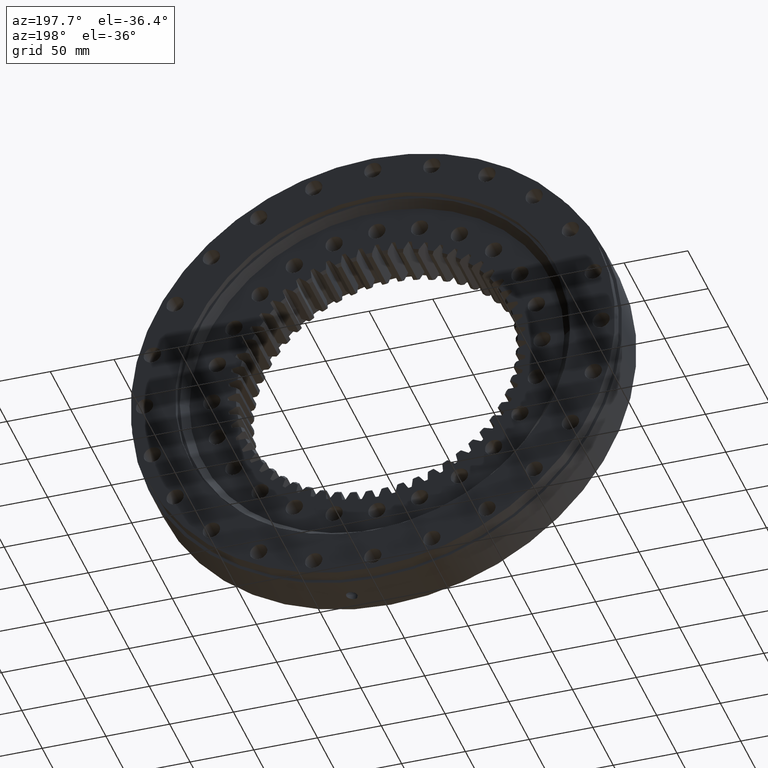
[diagram: clean part render]
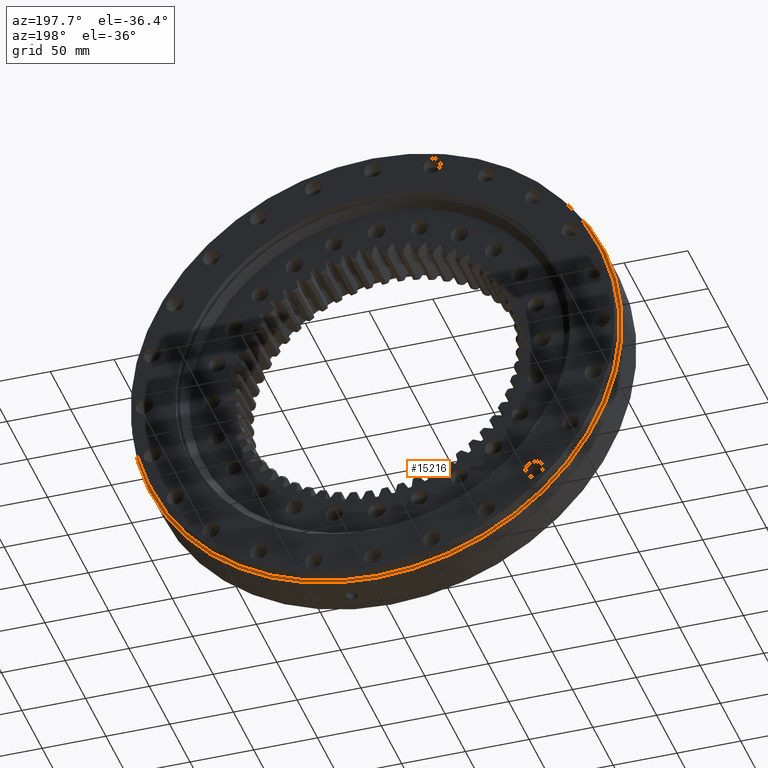
[diagram: same view with one face highlighted and labeled with its STEP entity id]
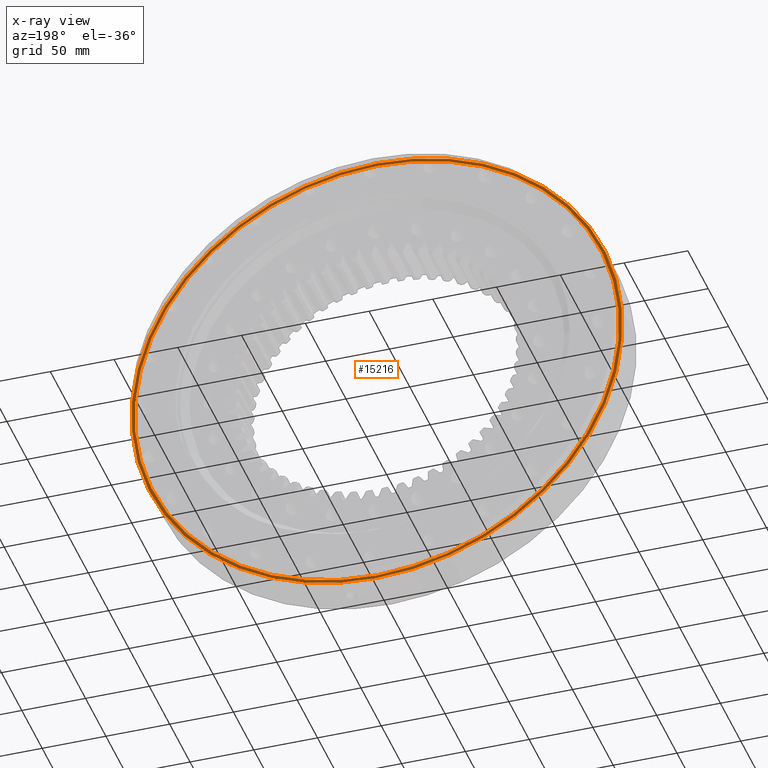
[diagram: x-ray of the same camera — body ghosted, the highlighted face saturated]
A machine part, auxiliary view. The second image highlights one B-rep face of the part: STEP entity #15216.
The next image is the same camera in x-ray: the body ghosted, the highlighted face saturated — about 0% of this face is hidden behind the body in this view.
In plain terms, the highlighted planar face has unit normal (-0, 1, 0).
Its self-contained STEP definition (entity closure, byte-faithful):
#297 = DIRECTION ( 'NONE',  ( -1.173697223544192200E-016, 1.000000000000000000, 8.822830751849694200E-017 ) ) ;
#1467 = EDGE_CURVE ( 'NONE', #11349, #14979, #4953, .T. ) ;
#1870 = EDGE_LOOP ( 'NONE', ( #15402, #10130 ) ) ;
#2967 = CARTESIAN_POINT ( 'NONE',  ( -2.053970141202340900E-015, 17.50000000000003600, 6.114880371925134200E-016 ) ) ;
#3278 = FACE_OUTER_BOUND ( 'NONE', #15466, .T. ) ;
#3811 = EDGE_CURVE ( 'NONE', #14611, #7790, #16145, .T. ) ;
#4822 = CARTESIAN_POINT ( 'NONE',  ( -2.053970141202340100E-015, 17.50000000000002800, -1.712296665085923400E-015 ) ) ;
#4941 = DIRECTION ( 'NONE',  ( -5.551115123125783900E-017, 8.822830751849692900E-017, -1.000000000000000000 ) ) ;
#4953 = CIRCLE ( 'NONE', #5582, 192.5000000000000000 ) ;
#5582 = AXIS2_PLACEMENT_3D ( 'NONE', #2967, #7716, #5866 ) ;
#5618 = PLANE ( 'NONE',  #5872 ) ;
#5688 = DIRECTION ( 'NONE',  ( -1.173697223544192200E-016, 1.000000000000000000, 8.822830751849692900E-017 ) ) ;
#5700 = CARTESIAN_POINT ( 'NONE',  ( 9.603371617361804800E-015, 17.50000000000001400, 210.0000000000000000 ) ) ;
#5760 = DIRECTION ( 'NONE',  ( 1.173697223544192200E-016, -1.000000000000000000, -8.822830751849692900E-017 ) ) ;
#5866 = DIRECTION ( 'NONE',  ( -5.551115123125783900E-017, 9.011550524554842000E-017, -1.000000000000000000 ) ) ;
#5872 = AXIS2_PLACEMENT_3D ( 'NONE', #5700, #297, #4941 ) ;
#6059 = CARTESIAN_POINT ( 'NONE',  ( -3.645622667071313900E-014, 17.50000000000004600, -190.0000000000000000 ) ) ;
#6458 = CARTESIAN_POINT ( 'NONE',  ( 1.068589661201712900E-014, 17.50000000000001800, 192.5000000000000000 ) ) ;
#7716 = DIRECTION ( 'NONE',  ( -1.173697223544192200E-016, 1.000000000000000000, 8.822830751849692900E-017 ) ) ;
#7790 = VERTEX_POINT ( 'NONE', #6059 ) ;
#9754 = AXIS2_PLACEMENT_3D ( 'NONE', #16926, #5760, #15286 ) ;
#9875 = AXIS2_PLACEMENT_3D ( 'NONE', #4822, #14630, #14642 ) ;
#9880 = CARTESIAN_POINT ( 'NONE',  ( -2.053970141202340900E-015, 17.50000000000003600, 6.114880371925134200E-016 ) ) ;
#10130 = ORIENTED_EDGE ( 'NONE', *, *, #14144, .T. ) ;
#11237 = DIRECTION ( 'NONE',  ( -5.551115123125783900E-017, 9.011550524554842000E-017, -1.000000000000000000 ) ) ;
#11349 = VERTEX_POINT ( 'NONE', #14937 ) ;
#12606 = ORIENTED_EDGE ( 'NONE', *, *, #1467, .T. ) ;
#13504 = FACE_BOUND ( 'NONE', #1870, .T. ) ;
#13813 = AXIS2_PLACEMENT_3D ( 'NONE', #9880, #5688, #11237 ) ;
#13874 = EDGE_CURVE ( 'NONE', #14979, #11349, #16516, .T. ) ;
#14144 = EDGE_CURVE ( 'NONE', #7790, #14611, #14395, .T. ) ;
#14395 = CIRCLE ( 'NONE', #9875, 190.0000000000000000 ) ;
#14611 = VERTEX_POINT ( 'NONE', #15362 ) ;
#14630 = DIRECTION ( 'NONE',  ( 1.173697223544192200E-016, -1.000000000000000000, -8.822830751849692900E-017 ) ) ;
#14642 = DIRECTION ( 'NONE',  ( 5.551115123125783900E-017, -9.130123557772668300E-017, 1.000000000000000000 ) ) ;
#14937 = CARTESIAN_POINT ( 'NONE',  ( -3.426034749560369200E-014, 17.50000000000005300, -192.5000000000000000 ) ) ;
#14979 = VERTEX_POINT ( 'NONE', #6458 ) ;
#15216 = ADVANCED_FACE ( 'NONE', ( #13504, #3278 ), #5618, .T. ) ;
#15286 = DIRECTION ( 'NONE',  ( 5.551115123125783900E-017, -9.130123557772668300E-017, 1.000000000000000000 ) ) ;
#15362 = CARTESIAN_POINT ( 'NONE',  ( 8.493148592736649800E-015, 17.50000000000001100, 190.0000000000000000 ) ) ;
#15402 = ORIENTED_EDGE ( 'NONE', *, *, #3811, .T. ) ;
#15466 = EDGE_LOOP ( 'NONE', ( #16181, #12606 ) ) ;
#16145 = CIRCLE ( 'NONE', #9754, 190.0000000000000000 ) ;
#16181 = ORIENTED_EDGE ( 'NONE', *, *, #13874, .T. ) ;
#16516 = CIRCLE ( 'NONE', #13813, 192.5000000000000000 ) ;
#16926 = CARTESIAN_POINT ( 'NONE',  ( -2.053970141202340100E-015, 17.50000000000002800, -1.712296665085923400E-015 ) ) ;